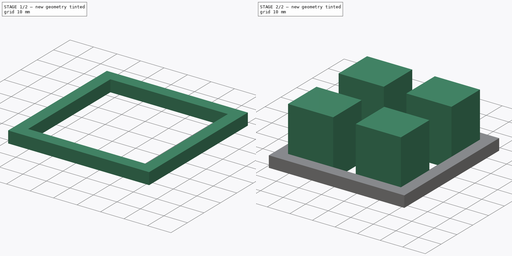
[diagram: build sequence overview — one tinted view per stage of 2, left to right]
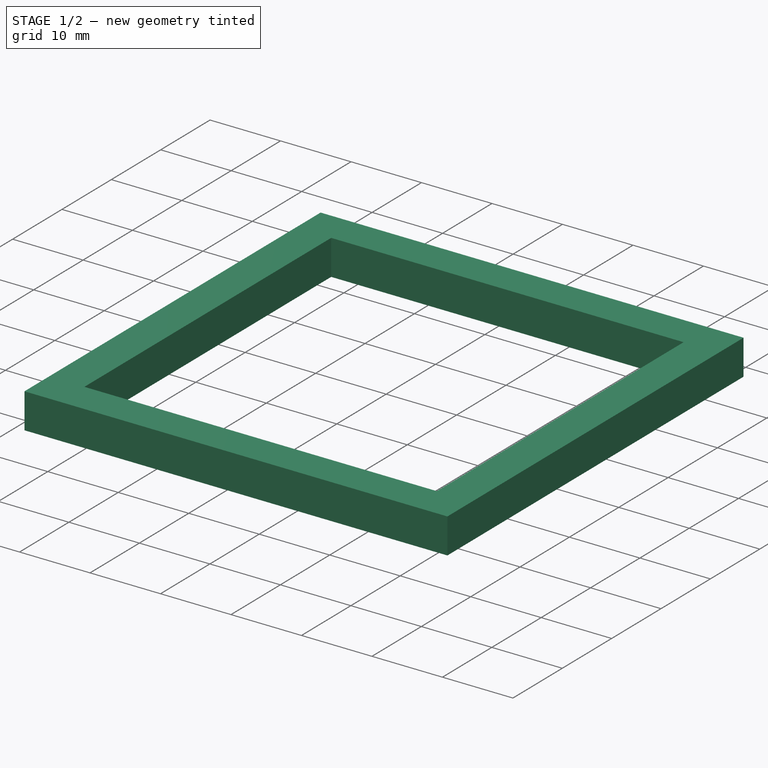
[diagram: stage 1 of 2 — iso view after this stage's code; geometry added in this stage tinted green]
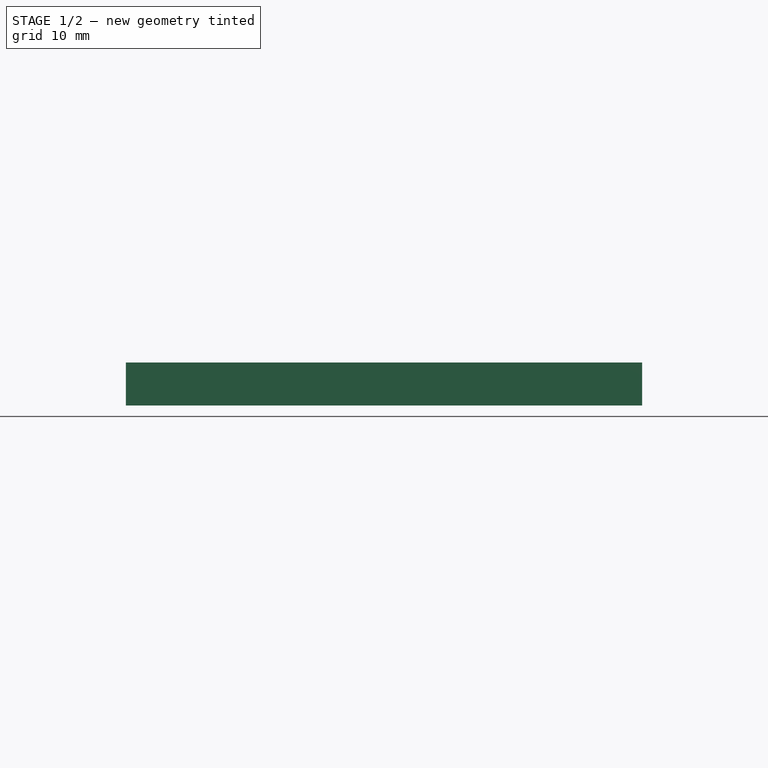
[diagram: stage 1 of 2 — front view after this stage's code; geometry added in this stage tinted green]
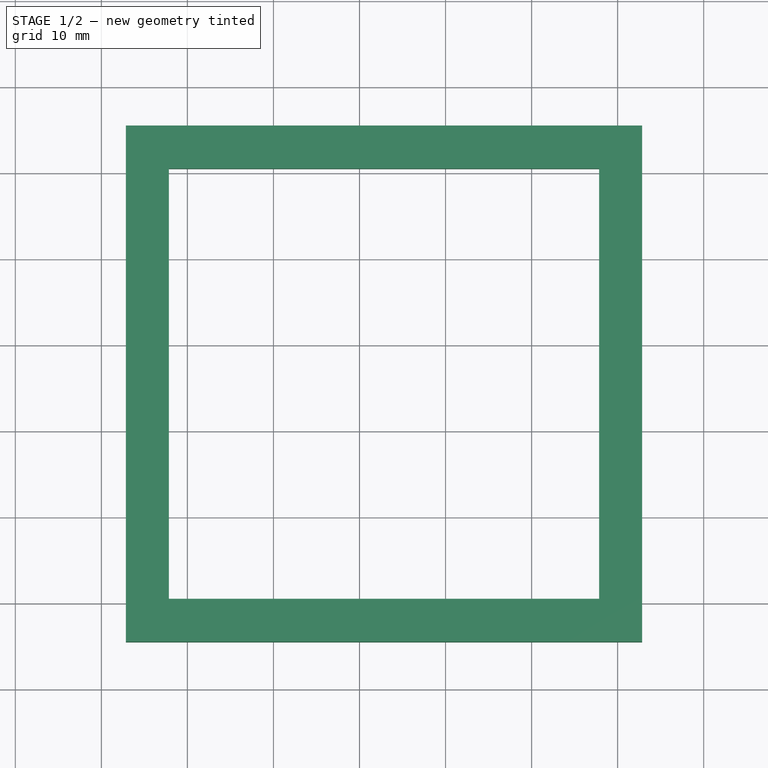
[diagram: stage 1 of 2 — top view after this stage's code; geometry added in this stage tinted green]
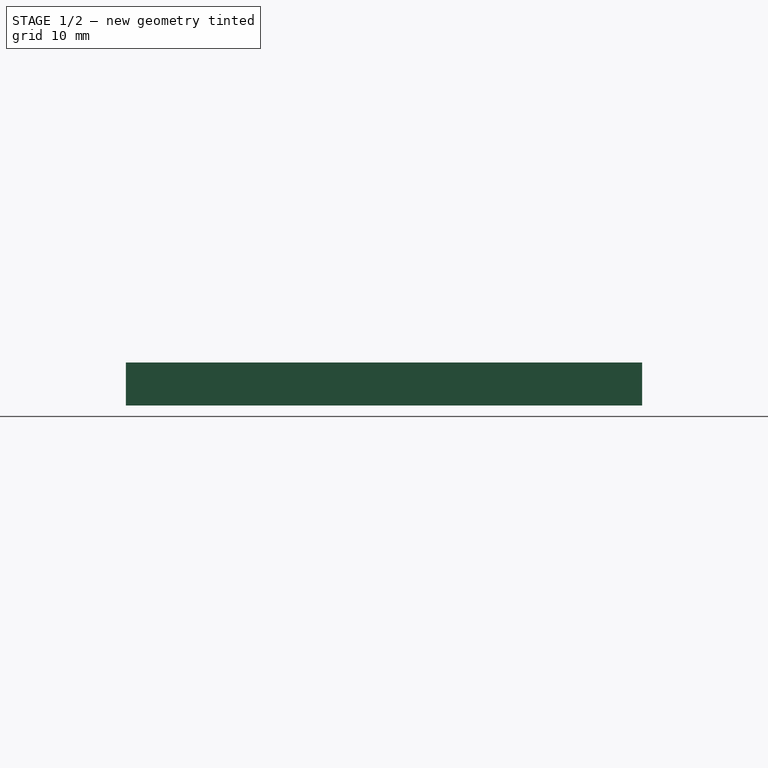
[diagram: stage 1 of 2 — right view after this stage's code; geometry added in this stage tinted green]
FCSTD DOCUMENT  (FreeCAD 0.18R16093 +53 (Git))
Label: support tige souflerie
License: All rights reserved
LicenseURL: http://en.wikipedia.org/wiki/All_rights_reserved
objects: Sketcher::SketchObject×3, PartDesign::Pad×2, PartDesign::Pocket×1, PartDesign::Body×1
note: 10 computed .brp shape members not serialized (recipe doc carries the construction recipe); baked Part::Feature solids carry a one-line shape summary decoded from their .brp

FEATURE [Sketcher::SketchObject] Sketch
  sketch-geometry (4):
    g0: LineSegment StartX=-7.15229 StartY=15.5001 StartZ=0 EndX=52.8477 EndY=15.5001 EndZ=0
    g1: LineSegment StartX=52.8477 StartY=15.5001 StartZ=0 EndX=52.8477 EndY=-44.4999 EndZ=0
    g2: LineSegment StartX=52.8477 StartY=-44.4999 StartZ=0 EndX=-7.15229 EndY=-44.4999 EndZ=0
    g3: LineSegment StartX=-7.15229 StartY=-44.4999 StartZ=0 EndX=-7.15229 EndY=15.5001 EndZ=0
  constraints (10):
    c: Coincident(g0,g1)
    c: Coincident(g1,g2)
    c: Coincident(g2,g3)
    c: Coincident(g3,g0)
    c: Horizontal(g0)
    c: Horizontal(g2)
    c: Vertical(g1)
    c: Vertical(g3)
    c: Distance(g0) = 60
    c: Distance(g3) = 60
FEATURE [PartDesign::Pad] Pad
  Length = 5
  Length2 = 100
  Profile = -> Sketch
  Type = 0
FEATURE [Sketcher::SketchObject] CopySketch001
  Placement = pos=(0,0,0) rot=(1,0,0;3.14159rad)
  sketch-geometry (4):
    g0: LineSegment StartX=-2.15229 StartY=39.4999 StartZ=0 EndX=47.8477 EndY=39.4999 EndZ=0
    g1: LineSegment StartX=47.8477 StartY=39.4999 StartZ=0 EndX=47.8477 EndY=-10.5001 EndZ=0
    g2: LineSegment StartX=47.8477 StartY=-10.5001 StartZ=0 EndX=-2.15229 EndY=-10.5001 EndZ=0
    g3: LineSegment StartX=-2.15229 StartY=-10.5001 StartZ=0 EndX=-2.15229 EndY=39.4999 EndZ=0
  constraints (10):
    c: Coincident(g0,g1)
    c: Coincident(g1,g2)
    c: Coincident(g2,g3)
    c: Coincident(g3,g0)
    c: Horizontal(g0)
    c: Horizontal(g2)
    c: Vertical(g1)
    c: Vertical(g3)
    c: Distance(g0) = 50
    c: Distance(g3) = 50
FEATURE [PartDesign::Pocket] Pocket
  BaseFeature = -> Pad
  Length = 11
  Length2 = 100
  Profile = -> CopySketch001
  Type = 0
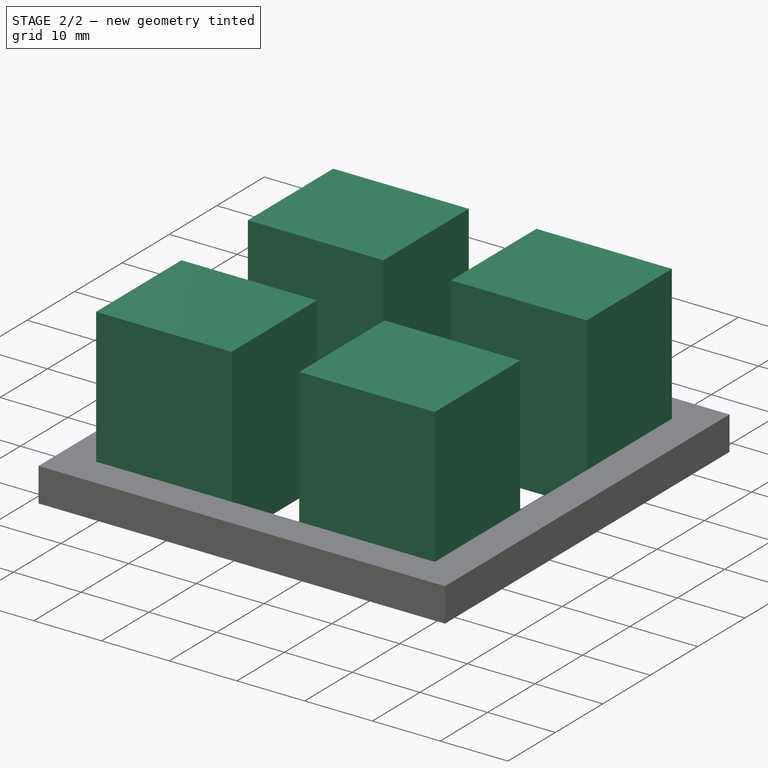
[diagram: stage 2 of 2 — iso view after this stage's code; geometry added in this stage tinted green]
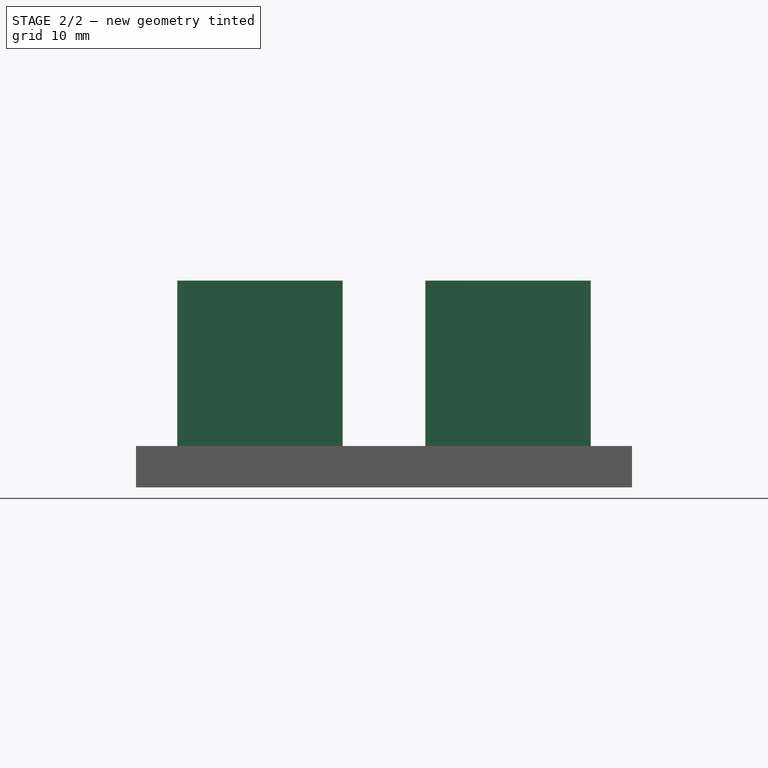
[diagram: stage 2 of 2 — front view after this stage's code; geometry added in this stage tinted green]
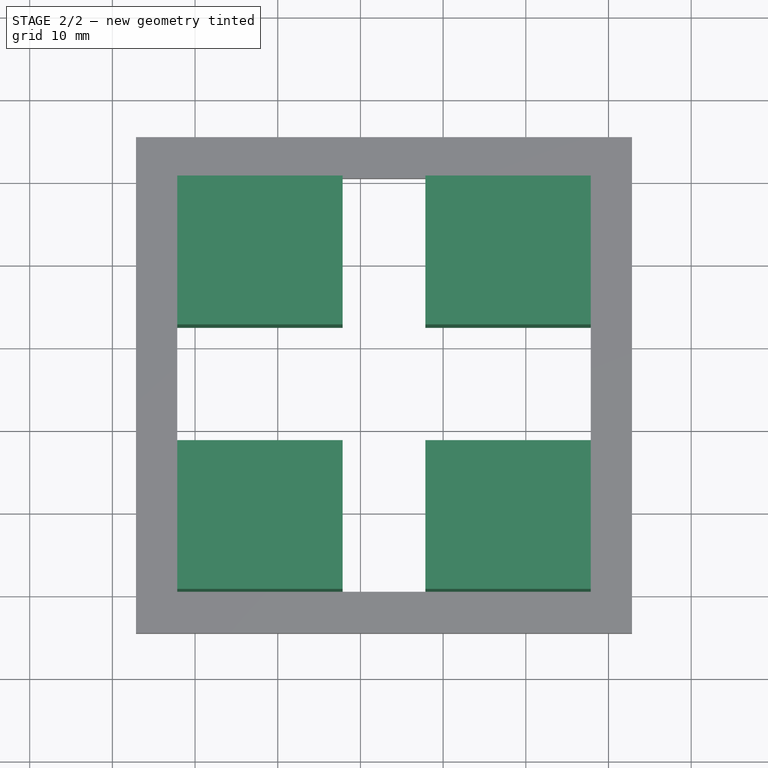
[diagram: stage 2 of 2 — top view after this stage's code; geometry added in this stage tinted green]
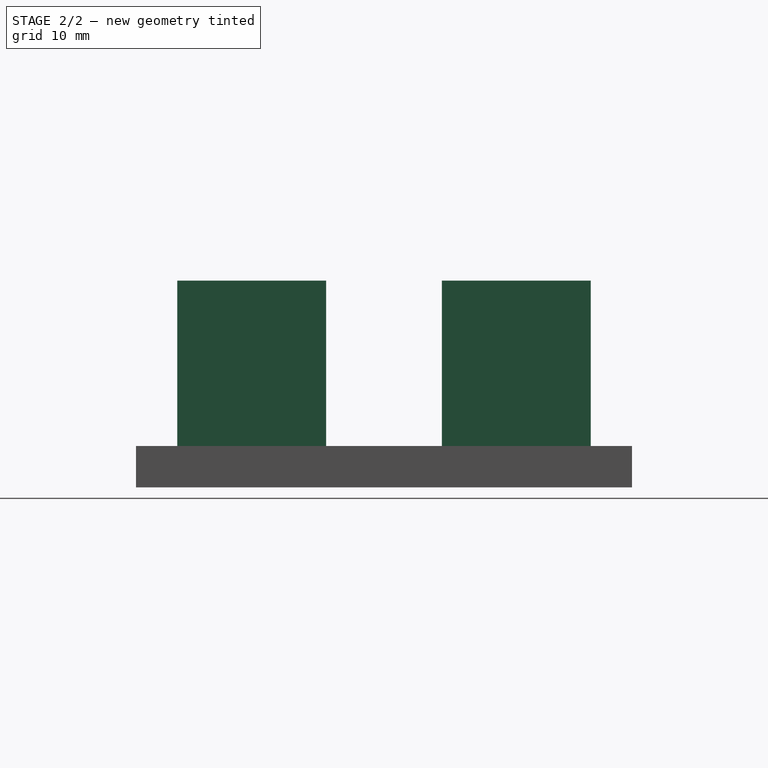
[diagram: stage 2 of 2 — right view after this stage's code; geometry added in this stage tinted green]
FEATURE [Sketcher::SketchObject] CopySketch002001  label="CopySketch003"
  Placement = pos=(0,0,0) rot=(1,0,0;3.14159rad)
  sketch-geometry (16):
    g0: LineSegment StartX=-2.15229 StartY=39.4999 StartZ=0 EndX=17.8477 EndY=39.4999 EndZ=0
    g1: LineSegment StartX=17.8477 StartY=39.4999 StartZ=0 EndX=17.8477 EndY=21.4999 EndZ=0
    g2: LineSegment StartX=17.8477 StartY=21.4999 StartZ=0 EndX=-2.15229 EndY=21.4999 EndZ=0
    g3: LineSegment StartX=-2.15229 StartY=21.4999 StartZ=0 EndX=-2.15229 EndY=39.4999 EndZ=0
    g4: LineSegment StartX=47.8477 StartY=39.4999 StartZ=0 EndX=27.8477 EndY=39.4999 EndZ=0
    g5: LineSegment StartX=27.8477 StartY=39.4999 StartZ=0 EndX=27.8477 EndY=21.4999 EndZ=0
    g6: LineSegment StartX=27.8477 StartY=21.4999 StartZ=0 EndX=47.8477 EndY=21.4999 EndZ=0
    g7: LineSegment StartX=47.8477 StartY=21.4999 StartZ=0 EndX=47.8477 EndY=39.4999 EndZ=0
    g8: LineSegment StartX=47.8477 StartY=-10.5001 StartZ=0 EndX=27.8477 EndY=-10.5001 EndZ=0
    g9: LineSegment StartX=27.8477 StartY=-10.5001 StartZ=0 EndX=27.8477 EndY=7.49992 EndZ=0
    g10: LineSegment StartX=27.8477 StartY=7.49992 StartZ=0 EndX=47.8477 EndY=7.49992 EndZ=0
    g11: LineSegment StartX=47.8477 StartY=7.49992 StartZ=0 EndX=47.8477 EndY=-10.5001 EndZ=0
    g12: LineSegment StartX=-2.15229 StartY=-10.5001 StartZ=0 EndX=17.8477 EndY=-10.5001 EndZ=0
    g13: LineSegment StartX=17.8477 StartY=-10.5001 StartZ=0 EndX=17.8477 EndY=7.49992 EndZ=0
    g14: LineSegment StartX=17.8477 StartY=7.49992 StartZ=0 EndX=-2.15229 EndY=7.49992 EndZ=0
    g15: LineSegment StartX=-2.15229 StartY=7.49992 StartZ=0 EndX=-2.15229 EndY=-10.5001 EndZ=0
  constraints (40):
    c: Coincident(g0,g1)
    c: Coincident(g1,g2)
    c: Coincident(g2,g3)
    c: Coincident(g3,g0)
    c: Horizontal(g0)
    c: Horizontal(g2)
    c: Vertical(g1)
    c: Vertical(g3)
    c: Coincident(g4,g5)
    c: Coincident(g5,g6)
    c: Coincident(g6,g7)
    c: Coincident(g7,g4)
    c: Horizontal(g4)
    c: Horizontal(g6)
    c: Vertical(g5)
    c: Vertical(g7)
    c: Coincident(g8,g9)
    c: Coincident(g9,g10)
    c: Coincident(g10,g11)
    c: Coincident(g11,g8)
    c: Horizontal(g8)
    c: Horizontal(g10)
    c: Vertical(g9)
    c: Vertical(g11)
    c: Coincident(g12,g13)
    c: Coincident(g13,g14)
    c: Coincident(g14,g15)
    c: Coincident(g15,g12)
    c: Horizontal(g12)
    c: Horizontal(g14)
    c: Vertical(g13)
    c: Vertical(g15)
    c: Distance(g2) = 20
    c: Distance(g6) = 20
    c: Distance(g10) = 20
    c: Distance(g14) = 20
    c: Distance(g9) = 18
    c: Distance(g13) = 18
    c: Distance(g1) = 18
    c: Distance(g5) = 18
FEATURE [PartDesign::Pad] Pad001
  BaseFeature = -> Pocket
  Length = 25
  Length2 = 100
  Profile = -> CopySketch002001
  Reversed = true
  Type = 0
FEATURE [PartDesign::Body] Body
  Group = -> [Sketch,Pad,Pocket,Pad001]
  Origin = -> Origin
  Tip = -> Pad001
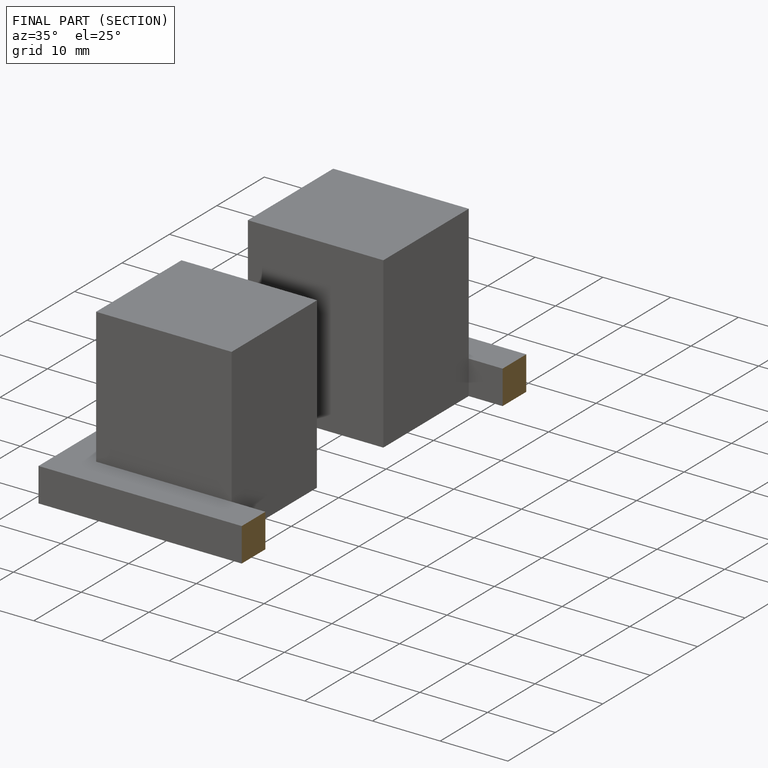
[diagram: finished part — half-section view (interior)]
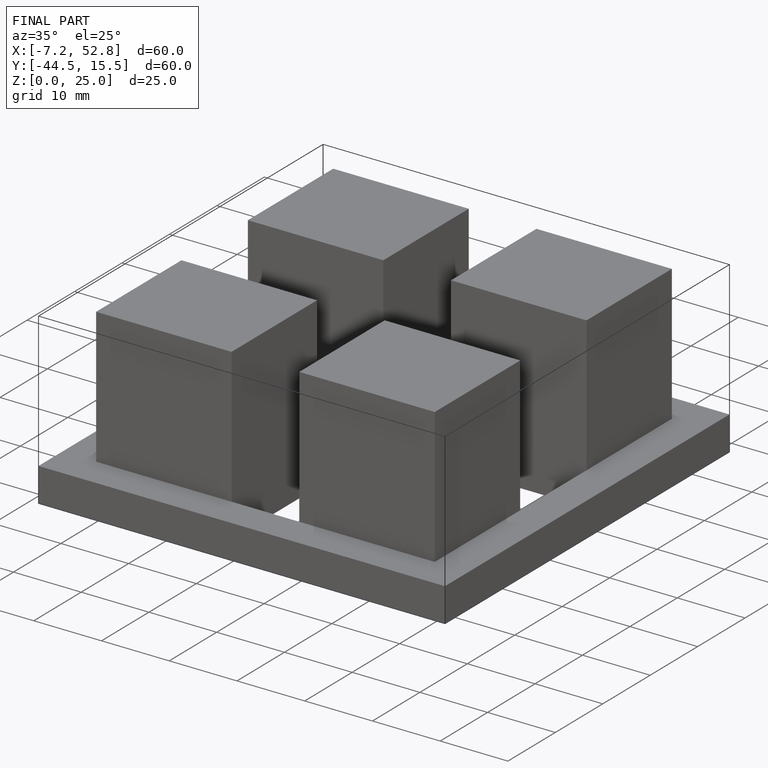
[diagram: finished part — iso view with bounding-box wireframe]
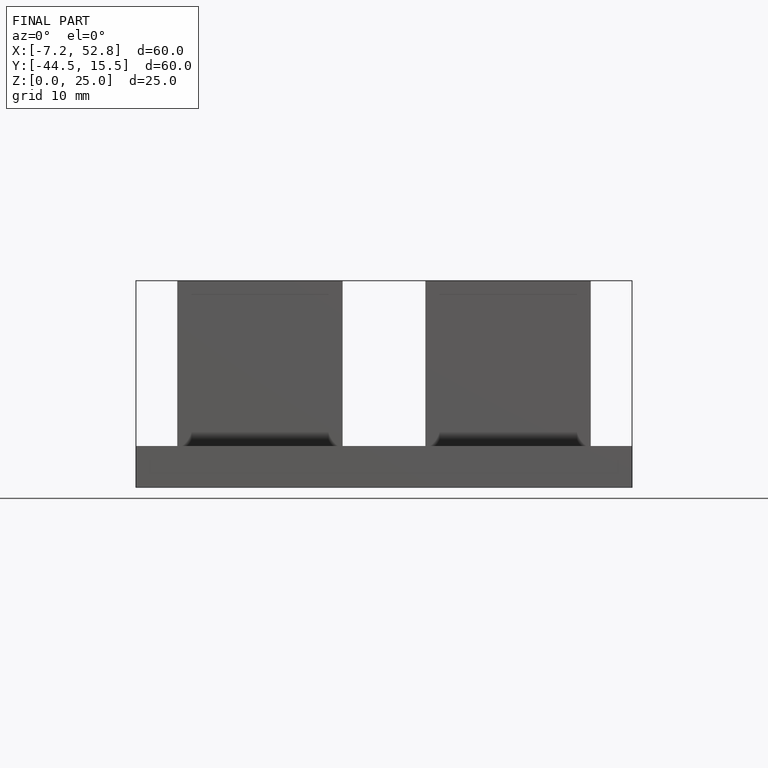
[diagram: finished part — front view with bounding-box wireframe]
